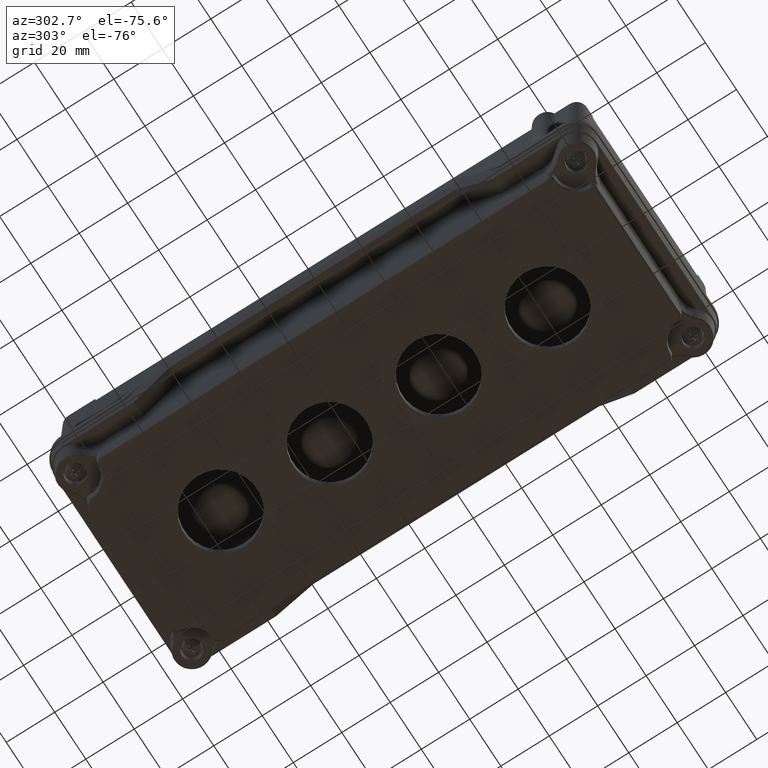
[diagram: clean part render]
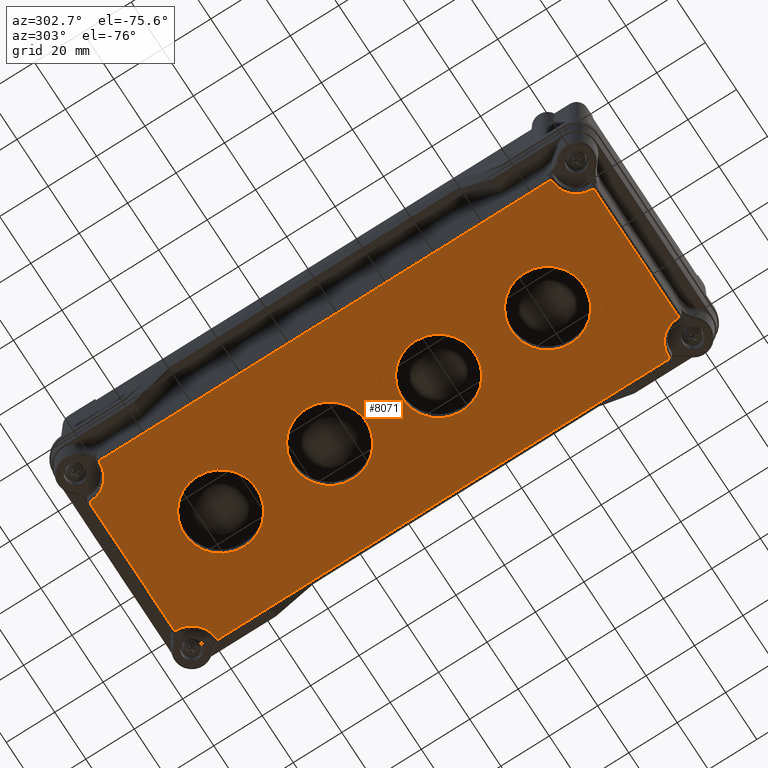
[diagram: same view with one face highlighted and labeled with its STEP entity id]
A machine part, auxiliary view. The second image highlights one B-rep face of the part: STEP entity #8071.
In plain terms, the highlighted planar face has unit normal (-0, 0, -1).
Its self-contained STEP definition (entity closure, byte-faithful):
#5871=CARTESIAN_POINT('',(-0.336741534578410,127.261391683954880,40.500000000000000));
#5872=VERTEX_POINT('',#5871);
#5888=CARTESIAN_POINT('',(-0.336741534578377,-54.857181445621052,40.500000000000000));
#5889=VERTEX_POINT('',#5888);
#5897=CARTESIAN_POINT('',(-0.336741534578377,-54.857181445621052,40.500000000000000));
#5898=DIRECTION('',(0.0,1.0,0.0));
#5899=VECTOR('',#5898,182.118573129575940);
#5900=LINE('',#5897,#5899);
#5901=EDGE_CURVE('',#5889,#5872,#5900,.T.);
#5911=CARTESIAN_POINT('',(-0.416955998710047,128.585317413578000,40.500000000000000));
#5912=VERTEX_POINT('',#5911);
#5922=CARTESIAN_POINT('',(-11.302430309385482,127.261391683954880,40.500000000000000));
#5923=DIRECTION('',(0.0,0.0,1.000000000000000));
#5924=DIRECTION('',(0.998177473758042,0.060346755356135,0.0));
#5925=AXIS2_PLACEMENT_3D('',#5922,#5923,#5924);
#5926=CIRCLE('',#5925,10.965688774807212);
#5927=EDGE_CURVE('',#5872,#5912,#5926,.T.);
#5939=CARTESIAN_POINT('',(-0.416955998710128,-56.181107175244172,40.500000000000000));
#5940=VERTEX_POINT('',#5939);
#5948=CARTESIAN_POINT('',(-11.302430309385379,-54.857181445621052,40.500000000000000));
#5949=DIRECTION('',(0.0,0.0,1.0));
#5950=DIRECTION('',(0.998177473758042,-0.060346755356137,0.0));
#5951=AXIS2_PLACEMENT_3D('',#5948,#5949,#5950);
#5952=CIRCLE('',#5951,10.965688774807031);
#5953=EDGE_CURVE('',#5940,#5889,#5952,.T.);
#6063=CARTESIAN_POINT('',(0.549705304405506,129.705654910625160,40.500000000000000));
#6064=VERTEX_POINT('',#6063);
#6090=CARTESIAN_POINT('',(-0.416955998710050,128.585317413578080,40.500000000000000));
#6091=CARTESIAN_POINT('',(-0.424100666013591,128.644061715203800,40.500000000000000));
#6092=CARTESIAN_POINT('',(-0.426713823472810,128.723821464357140,40.500000000000000));
#6093=CARTESIAN_POINT('',(-0.412642286476834,128.882846244157430,40.499999999999993));
#6094=CARTESIAN_POINT('',(-0.370964119019141,129.056486038928710,40.499999999999986));
#6095=CARTESIAN_POINT('',(-0.288090323461171,129.217822496155210,40.499999999999986));
#6096=CARTESIAN_POINT('',(-0.195771831061749,129.346013738602150,40.499999999999986));
#6097=CARTESIAN_POINT('',(-0.087816253757682,129.463746395688560,40.499999999999993));
#6098=CARTESIAN_POINT('',(0.091498978167510,129.591502626109270,40.499999999999986));
#6099=CARTESIAN_POINT('',(0.312786644344648,129.680376095271670,40.500000000000000));
#6100=CARTESIAN_POINT('',(0.470830399737456,129.703552725720130,40.500000000000000));
#6101=CARTESIAN_POINT('',(0.549705304405506,129.705654910625130,40.500000000000000));
#6102=B_SPLINE_CURVE_WITH_KNOTS('',3,(#6090,#6091,#6092,#6093,#6094,#6095,#6096,#6097,#6098,#6099,#6100,#6101),.UNSPECIFIED.,.F.,.U.,(4,1,1,1,1,1,1,1,1,4),(0.0,0.017753155550305,0.023670874067073,0.047341748134146,0.071012622201219,0.076930340717987,0.094683496268292,0.118354370335365,0.142025244402438,0.165696118469511),.UNSPECIFIED.);
#6103=EDGE_CURVE('',#5912,#6064,#6102,.T.);
#6232=CARTESIAN_POINT('',(0.549705304405435,-57.301444672291325,40.500000000000000));
#6233=VERTEX_POINT('',#6232);
#6241=CARTESIAN_POINT('',(0.549705304405435,-57.301444672291339,40.500000000000000));
#6242=CARTESIAN_POINT('',(0.470830399736940,-57.299342487386319,40.500000000000000));
#6243=CARTESIAN_POINT('',(0.312876737412772,-57.276249987053816,40.499999999999964));
#6244=CARTESIAN_POINT('',(0.091519842894758,-57.187290212524758,40.499999999999964));
#6245=CARTESIAN_POINT('',(-0.054844518446180,-57.083089145379290,40.499999999999950));
#6246=CARTESIAN_POINT('',(-0.140881661954736,-56.999887636847404,40.499999999999943));
#6247=CARTESIAN_POINT('',(-0.221326377444688,-56.912229873491178,40.499999999999943));
#6248=CARTESIAN_POINT('',(-0.288220557187905,-56.813312156864058,40.499999999999972));
#6249=CARTESIAN_POINT('',(-0.339821074052699,-56.705172118623878,40.499999999999950));
#6250=CARTESIAN_POINT('',(-0.384587155654208,-56.594711449037938,40.499999999999964));
#6251=CARTESIAN_POINT('',(-0.426733577401936,-56.420554670263925,40.499999999999972));
#6252=CARTESIAN_POINT('',(-0.426482221781576,-56.259432910745630,40.500000000000000));
#6253=CARTESIAN_POINT('',(-0.416955998710134,-56.181107175244250,40.500000000000000));
#6254=B_SPLINE_CURVE_WITH_KNOTS('',3,(#6241,#6242,#6243,#6244,#6245,#6246,#6247,#6248,#6249,#6250,#6251,#6252,#6253),.UNSPECIFIED.,.F.,.U.,(4,1,1,1,1,1,1,1,1,1,4),(0.0,0.023670874067206,0.047341748134412,0.071012622201618,0.076930340718420,0.082848059235221,0.106518933302427,0.112436651819229,0.118354370336031,0.142025244403237,0.165696118470443),.UNSPECIFIED.);
#6255=EDGE_CURVE('',#6233,#5940,#6254,.T.);
#6265=CARTESIAN_POINT('',(10.279728734740491,139.435678340959410,40.500000000000000));
#6266=VERTEX_POINT('',#6265);
#6284=CARTESIAN_POINT('',(0.283278526198761,139.702105119166900,40.500000000000000));
#6285=DIRECTION('',(0.0,0.0,1.0));
#6286=DIRECTION('',(0.707106781186545,-0.707106781186550,0.0));
#6287=AXIS2_PLACEMENT_3D('',#6284,#6285,#6286);
#6288=CIRCLE('',#6287,10.0);
#6289=EDGE_CURVE('',#6064,#6266,#6288,.T.);
#6301=CARTESIAN_POINT('',(10.279728734740479,-67.031468102625610,40.500000000000000));
#6302=VERTEX_POINT('',#6301);
#6310=CARTESIAN_POINT('',(0.283278526198749,-67.297894880833098,40.500000000000000));
#6311=DIRECTION('',(0.0,0.0,1.0));
#6312=DIRECTION('',(0.707106781186548,0.707106781186547,0.0));
#6313=AXIS2_PLACEMENT_3D('',#6310,#6311,#6312);
#6314=CIRCLE('',#6313,10.0);
#6315=EDGE_CURVE('',#6302,#6233,#6314,.T.);
#6409=CARTESIAN_POINT('',(11.400066231787598,140.402339644075790,40.500000000000000));
#6410=VERTEX_POINT('',#6409);
#6432=CARTESIAN_POINT('',(10.279728734740509,139.435678340960150,40.500000000000000));
#6433=CARTESIAN_POINT('',(10.281830909904601,139.514552880144860,40.500000000000000));
#6434=CARTESIAN_POINT('',(10.305144686854238,139.673781599064770,40.499999999999986));
#6435=CARTESIAN_POINT('',(10.394677603719593,139.895369724699150,40.500000000000007));
#6436=CARTESIAN_POINT('',(10.534658201642698,140.091096019923040,40.499999999999979));
#6437=CARTESIAN_POINT('',(10.716191023647806,140.247338210381660,40.499999999999993));
#6438=CARTESIAN_POINT('',(10.930373231145809,140.356949431031380,40.499999999999986));
#6439=CARTESIAN_POINT('',(11.162067625757643,140.412214203088520,40.499999999999993));
#6440=CARTESIAN_POINT('',(11.321740859225315,140.411865823005400,40.500000000000000));
#6441=CARTESIAN_POINT('',(11.400066231787591,140.402339644075770,40.500000000000000));
#6442=B_SPLINE_CURVE_WITH_KNOTS('',3,(#6432,#6433,#6434,#6435,#6436,#6437,#6438,#6439,#6440,#6441),.UNSPECIFIED.,.F.,.U.,(4,1,1,1,1,1,1,4),(0.0,0.023670764383131,0.047341528766262,0.071012293149393,0.094683057532524,0.118353821915655,0.142024586298786,0.165695350681917),.UNSPECIFIED.);
#6443=EDGE_CURVE('',#6266,#6410,#6442,.T.);
#6563=CARTESIAN_POINT('',(11.400066231787580,-67.998129405741878,40.500000000000000));
#6564=VERTEX_POINT('',#6563);
#6572=CARTESIAN_POINT('',(11.400066231787584,-67.998129405741878,40.500000000000000));
#6573=CARTESIAN_POINT('',(11.321740859224748,-68.007655584671582,40.500000000000000));
#6574=CARTESIAN_POINT('',(11.082498934690406,-68.008436048963645,40.500000000000036));
#6575=CARTESIAN_POINT('',(10.815638859349372,-67.910170913589809,40.500000000000050));
#6576=CARTESIAN_POINT('',(10.625191949040410,-67.764650366488425,40.500000000000078));
#6577=CARTESIAN_POINT('',(10.511844708894511,-67.654675235715416,40.500000000000064));
#6578=CARTESIAN_POINT('',(10.435415112740520,-67.548255114636760,40.500000000000085));
#6579=CARTESIAN_POINT('',(10.388992703377404,-67.460570353079461,40.500000000000078));
#6580=CARTESIAN_POINT('',(10.354051155022898,-67.389661117339386,40.500000000000078));
#6581=CARTESIAN_POINT('',(10.302276953244990,-67.249824706873042,40.500000000000085));
#6582=CARTESIAN_POINT('',(10.281830909904604,-67.110342641811513,40.500000000000000));
#6583=CARTESIAN_POINT('',(10.279728734740496,-67.031468102626263,40.500000000000000));
#6584=B_SPLINE_CURVE_WITH_KNOTS('',3,(#6572,#6573,#6574,#6575,#6576,#6577,#6578,#6579,#6580,#6581,#6582,#6583),.UNSPECIFIED.,.F.,.U.,(4,1,1,1,1,1,1,1,1,4),(0.0,0.023670764383300,0.071012293149899,0.082847675341549,0.094683057533199,0.118353821916499,0.121312667464411,0.124271513012324,0.142024586299799,0.165695350683099),.UNSPECIFIED.);
#6585=EDGE_CURVE('',#6564,#6302,#6584,.T.);
#6595=CARTESIAN_POINT('',(12.723991961410803,140.322125179943980,40.500000000000000));
#6596=VERTEX_POINT('',#6595);
#6606=CARTESIAN_POINT('',(12.723991961410803,151.287813954751130,40.500000000000000));
#6607=DIRECTION('',(0.0,0.0,1.0));
#6608=DIRECTION('',(-0.060346755356136,-0.998177473758042,0.0));
#6609=AXIS2_PLACEMENT_3D('',#6606,#6607,#6608);
#6610=CIRCLE('',#6609,10.965688774807163);
#6611=EDGE_CURVE('',#6410,#6596,#6610,.T.);
#6623=CARTESIAN_POINT('',(12.723991961410801,-67.917914941610093,40.500000000000000));
#6624=VERTEX_POINT('',#6623);
#6632=CARTESIAN_POINT('',(12.723991961410805,-78.883603716417213,40.500000000000000));
#6633=DIRECTION('',(0.0,0.0,1.0));
#6634=DIRECTION('',(-0.060346755356138,0.998177473758042,0.0));
#6635=AXIS2_PLACEMENT_3D('',#6632,#6633,#6634);
#6636=CIRCLE('',#6635,10.965688774807122);
#6637=EDGE_CURVE('',#6624,#6564,#6636,.T.);
#6655=CARTESIAN_POINT('',(62.842565090986653,140.322125179944070,40.500000000000000));
#6656=VERTEX_POINT('',#6655);
#6671=CARTESIAN_POINT('',(12.723991961410803,140.322125179943980,40.500000000000000));
#6672=DIRECTION('',(1.0,0.0,0.0));
#6673=VECTOR('',#6672,50.118573129575850);
#6674=LINE('',#6671,#6673);
#6675=EDGE_CURVE('',#6596,#6656,#6674,.T.);
#6687=CARTESIAN_POINT('',(62.842565090986710,-67.917914941610221,40.500000000000000));
#6688=VERTEX_POINT('',#6687);
#6696=CARTESIAN_POINT('',(62.842565090986710,-67.917914941610221,40.500000000000000));
#6697=DIRECTION('',(-1.0,0.0,0.0));
#6698=VECTOR('',#6697,50.118573129575907);
#6699=LINE('',#6696,#6698);
#6700=EDGE_CURVE('',#6688,#6624,#6699,.T.);
#6717=CARTESIAN_POINT('',(64.166490820609823,140.402339644075880,40.500000000000000));
#6718=VERTEX_POINT('',#6717);
#6728=CARTESIAN_POINT('',(62.842565090986653,151.287813954751240,40.500000000000000));
#6729=DIRECTION('',(0.0,0.0,1.0));
#6730=DIRECTION('',(0.060346755356139,-0.998177473758042,0.0));
#6731=AXIS2_PLACEMENT_3D('',#6728,#6729,#6730);
#6732=CIRCLE('',#6731,10.965688774807163);
#6733=EDGE_CURVE('',#6656,#6718,#6732,.T.);
#6745=CARTESIAN_POINT('',(64.166490820609880,-67.998129405742063,40.500000000000000));
#6746=VERTEX_POINT('',#6745);
#6754=CARTESIAN_POINT('',(62.842565090986710,-78.883603716417312,40.500000000000000));
#6755=DIRECTION('',(0.0,0.0,1.0));
#6756=DIRECTION('',(0.060346755356140,0.998177473758042,0.0));
#6757=AXIS2_PLACEMENT_3D('',#6754,#6755,#6756);
#6758=CIRCLE('',#6757,10.965688774807038);
#6759=EDGE_CURVE('',#6746,#6688,#6758,.T.);
#6853=CARTESIAN_POINT('',(65.286828317656983,139.435678340960290,40.500000000000000));
#6854=VERTEX_POINT('',#6853);
#6878=CARTESIAN_POINT('',(64.166490820609880,140.402339644075880,40.500000000000000));
#6879=CARTESIAN_POINT('',(64.244816556110820,140.411865867147270,40.500000000000000));
#6880=CARTESIAN_POINT('',(64.405747064703590,140.412201407858020,40.499999999999986));
#6881=CARTESIAN_POINT('',(64.638062420017562,140.356096510457800,40.500000000000007));
#6882=CARTESIAN_POINT('',(64.852154650970519,140.246243280165230,40.500000000000000));
#6883=CARTESIAN_POINT('',(65.033252270474193,140.089480104530570,40.500000000000007));
#6884=CARTESIAN_POINT('',(65.172995814325205,139.893637866767340,40.499999999999993));
#6885=CARTESIAN_POINT('',(65.261614047719078,139.672540306626390,40.500000000000000));
#6886=CARTESIAN_POINT('',(65.284726132751970,139.514553245628350,40.500000000000000));
#6887=CARTESIAN_POINT('',(65.286828317656983,139.435678340960290,40.500000000000000));
#6888=B_SPLINE_CURVE_WITH_KNOTS('',3,(#6878,#6879,#6880,#6881,#6882,#6883,#6884,#6885,#6886,#6887),.UNSPECIFIED.,.F.,.U.,(4,1,1,1,1,1,1,4),(0.0,0.023670874067074,0.047341748134147,0.071012622201221,0.094683496268294,0.118354370335368,0.142025244402442,0.165696118469515),.UNSPECIFIED.);
#6889=EDGE_CURVE('',#6718,#6854,#6888,.T.);
#7009=CARTESIAN_POINT('',(65.286828317657054,-67.031468102626462,40.500000000000000));
#7010=VERTEX_POINT('',#7009);
#7018=CARTESIAN_POINT('',(65.286828317657054,-67.031468102626491,40.500000000000000));
#7019=CARTESIAN_POINT('',(65.284726132752041,-67.110343007294972,40.500000000000000));
#7020=CARTESIAN_POINT('',(65.250341075508970,-67.347104648974948,40.499999999999922));
#7021=CARTESIAN_POINT('',(65.114112660824929,-67.596686286915997,40.499999999999872));
#7022=CARTESIAN_POINT('',(64.942312332366512,-67.763833070764719,40.499999999999844));
#7023=CARTESIAN_POINT('',(64.816957597347781,-67.859886106565753,40.499999999999829));
#7024=CARTESIAN_POINT('',(64.700512177144233,-67.919930909974155,40.499999999999808));
#7025=CARTESIAN_POINT('',(64.606970682333994,-67.953020112342017,40.499999999999808));
#7026=CARTESIAN_POINT('',(64.531705783168817,-67.977203377435856,40.499999999999808));
#7027=CARTESIAN_POINT('',(64.385802651295421,-68.007921251241626,40.499999999999844));
#7028=CARTESIAN_POINT('',(64.244816556111331,-68.007655628813524,40.500000000000000));
#7029=CARTESIAN_POINT('',(64.166490820609951,-67.998129405742077,40.500000000000000));
#7030=B_SPLINE_CURVE_WITH_KNOTS('',3,(#7018,#7019,#7020,#7021,#7022,#7023,#7024,#7025,#7026,#7027,#7028,#7029),.UNSPECIFIED.,.F.,.U.,(4,1,1,1,1,1,1,1,1,4),(0.0,0.023670874067206,0.071012622201619,0.082848059235223,0.094683496268826,0.118354370336032,0.121313229594433,0.124272088852834,0.142025244403239,0.165696118470445),.UNSPECIFIED.);
#7031=EDGE_CURVE('',#7010,#6746,#7030,.T.);
#7041=CARTESIAN_POINT('',(75.016851747991282,129.705654910625190,40.500000000000000));
#7042=VERTEX_POINT('',#7041);
#7060=CARTESIAN_POINT('',(75.283278526198728,139.702105119166930,40.500000000000000));
#7061=DIRECTION('',(0.0,0.0,1.0));
#7062=DIRECTION('',(-0.707106781186552,-0.707106781186543,0.0));
#7063=AXIS2_PLACEMENT_3D('',#7060,#7061,#7062);
#7064=CIRCLE('',#7063,10.0);
#7065=EDGE_CURVE('',#6854,#7042,#7064,.T.);
#7077=CARTESIAN_POINT('',(75.016851747991566,-57.301444672291339,40.500000000000000));
#7078=VERTEX_POINT('',#7077);
#7086=CARTESIAN_POINT('',(75.283278526198799,-67.297894880833070,40.500000000000000));
#7087=DIRECTION('',(0.0,0.0,1.0));
#7088=DIRECTION('',(-0.707106781186543,0.707106781186552,0.0));
#7089=AXIS2_PLACEMENT_3D('',#7086,#7087,#7088);
#7090=CIRCLE('',#7089,9.999999999999998);
#7091=EDGE_CURVE('',#7078,#7010,#7090,.T.);
#7201=CARTESIAN_POINT('',(75.983513051107664,128.585317413578080,40.500000000000000));
#7202=VERTEX_POINT('',#7201);
#7226=CARTESIAN_POINT('',(75.016851747992035,129.705654910625190,40.500000000000000));
#7227=CARTESIAN_POINT('',(75.076007652380554,129.704078279252120,40.500000000000000));
#7228=CARTESIAN_POINT('',(75.155281393558312,129.694941143648720,40.499999999999979));
#7229=CARTESIAN_POINT('',(75.310521416619807,129.657682326354060,40.499999999999979));
#7230=CARTESIAN_POINT('',(75.476175377100915,129.591015274016770,40.499999999999972));
#7231=CARTESIAN_POINT('',(75.623653043629446,129.485447926388500,40.499999999999986));
#7232=CARTESIAN_POINT('',(75.736986519614959,129.375372231852450,40.500000000000000));
#7233=CARTESIAN_POINT('',(75.837664758110776,129.251389314630020,40.500000000000000));
#7234=CARTESIAN_POINT('',(75.937843754867060,129.055296725914760,40.500000000000007));
#7235=CARTESIAN_POINT('',(75.993328846579075,128.823384115109750,40.500000000000007));
#7236=CARTESIAN_POINT('',(75.993039230037326,128.663642786140340,40.500000000000000));
#7237=CARTESIAN_POINT('',(75.983513051107678,128.585317413578080,40.500000000000000));
#7238=B_SPLINE_CURVE_WITH_KNOTS('',3,(#7226,#7227,#7228,#7229,#7230,#7231,#7232,#7233,#7234,#7235,#7236,#7237),.UNSPECIFIED.,.F.,.U.,(4,1,1,1,1,1,1,1,1,4),(0.0,0.017753073287348,0.023670764383131,0.047341528766262,0.071012293149394,0.076929984245176,0.094683057532525,0.118353821915656,0.142024586298787,0.165695350681918),.UNSPECIFIED.);
#7239=EDGE_CURVE('',#7042,#7202,#7238,.T.);
#7368=CARTESIAN_POINT('',(75.983513051107835,-56.181107175244236,40.500000000000000));
#7369=VERTEX_POINT('',#7368);
#7377=CARTESIAN_POINT('',(75.983513051107821,-56.181107175244222,40.500000000000000));
#7378=CARTESIAN_POINT('',(75.993039230037525,-56.259432547807059,40.500000000000000));
#7379=CARTESIAN_POINT('',(75.993404576145679,-56.419065417874414,40.499999999999993));
#7380=CARTESIAN_POINT('',(75.937841128325573,-56.651063882392371,40.499999999999979));
#7381=CARTESIAN_POINT('',(75.856155102495620,-56.811108238369030,40.499999999999972));
#7382=CARTESIAN_POINT('',(75.786422695778938,-56.908378933576287,40.499999999999972));
#7383=CARTESIAN_POINT('',(75.711470640226096,-57.000761774413228,40.499999999999964));
#7384=CARTESIAN_POINT('',(75.623380451503024,-57.081405619762833,40.500000000000000));
#7385=CARTESIAN_POINT('',(75.523951842767033,-57.148266330766788,40.499999999999986));
#7386=CARTESIAN_POINT('',(75.421235746799525,-57.208711974927645,40.499999999999993));
#7387=CARTESIAN_POINT('',(75.255130126333754,-57.275919948726035,40.499999999999986));
#7388=CARTESIAN_POINT('',(75.095726287177470,-57.299342497127206,40.500000000000000));
#7389=CARTESIAN_POINT('',(75.016851747992206,-57.301444672291311,40.500000000000000));
#7390=B_SPLINE_CURVE_WITH_KNOTS('',3,(#7377,#7378,#7379,#7380,#7381,#7382,#7383,#7384,#7385,#7386,#7387,#7388,#7389),.UNSPECIFIED.,.F.,.U.,(4,1,1,1,1,1,1,1,1,1,4),(0.0,0.023670764383300,0.047341528766600,0.071012293149900,0.076929984245725,0.082847675341550,0.106518439724851,0.112436130820676,0.118353821916501,0.142024586299801,0.165695350683101),.UNSPECIFIED.);
#7391=EDGE_CURVE('',#7369,#7078,#7390,.T.);
#7401=CARTESIAN_POINT('',(75.903298586975851,127.261391683954860,40.500000000000000));
#7402=VERTEX_POINT('',#7401);
#7412=CARTESIAN_POINT('',(86.868987361782985,127.261391683954880,40.500000000000000));
#7413=DIRECTION('',(0.0,0.0,1.000000000000000));
#7414=DIRECTION('',(-0.998177473758042,0.060346755356136,0.0));
#7415=AXIS2_PLACEMENT_3D('',#7412,#7413,#7414);
#7416=CIRCLE('',#7415,10.965688774807118);
#7417=EDGE_CURVE('',#7202,#7402,#7416,.T.);
#7429=CARTESIAN_POINT('',(75.903298586976035,-54.857181445620952,40.500000000000000));
#7430=VERTEX_POINT('',#7429);
#7438=CARTESIAN_POINT('',(86.868987361783041,-54.857181445620959,40.500000000000000));
#7439=DIRECTION('',(0.0,0.0,1.000000000000000));
#7440=DIRECTION('',(-0.998177473758042,-0.060346755356141,0.0));
#7441=AXIS2_PLACEMENT_3D('',#7438,#7439,#7440);
#7442=CIRCLE('',#7441,10.965688774807003);
#7443=EDGE_CURVE('',#7430,#7369,#7442,.T.);
#7462=CARTESIAN_POINT('',(75.903298586975851,127.261391683954860,40.500000000000000));
#7463=DIRECTION('',(0.0,-1.0,0.0));
#7464=VECTOR('',#7463,182.118573129575790);
#7465=LINE('',#7462,#7464);
#7466=EDGE_CURVE('',#7402,#7430,#7465,.T.);
#7996=CARTESIAN_POINT('',(37.783278526198750,36.202105119166916,40.500000000000000));
#7997=DIRECTION('',(0.0,0.0,1.0));
#7998=DIRECTION('',(1.0,0.0,0.0));
#7999=AXIS2_PLACEMENT_3D('',#7996,#7997,#7998);
#8000=PLANE('',#7999);
#8001=ORIENTED_EDGE('',*,*,#5901,.F.);
#8002=ORIENTED_EDGE('',*,*,#5953,.F.);
#8003=ORIENTED_EDGE('',*,*,#6255,.F.);
#8004=ORIENTED_EDGE('',*,*,#6315,.F.);
#8005=ORIENTED_EDGE('',*,*,#6585,.F.);
#8006=ORIENTED_EDGE('',*,*,#6637,.F.);
#8007=ORIENTED_EDGE('',*,*,#6700,.F.);
#8008=ORIENTED_EDGE('',*,*,#6759,.F.);
#8009=ORIENTED_EDGE('',*,*,#7031,.F.);
#8010=ORIENTED_EDGE('',*,*,#7091,.F.);
#8011=ORIENTED_EDGE('',*,*,#7391,.F.);
#8012=ORIENTED_EDGE('',*,*,#7443,.F.);
#8013=ORIENTED_EDGE('',*,*,#7466,.F.);
#8014=ORIENTED_EDGE('',*,*,#7417,.F.);
#8015=ORIENTED_EDGE('',*,*,#7239,.F.);
#8016=ORIENTED_EDGE('',*,*,#7065,.F.);
#8017=ORIENTED_EDGE('',*,*,#6889,.F.);
#8018=ORIENTED_EDGE('',*,*,#6733,.F.);
#8019=ORIENTED_EDGE('',*,*,#6675,.F.);
#8020=ORIENTED_EDGE('',*,*,#6611,.F.);
#8021=ORIENTED_EDGE('',*,*,#6443,.F.);
#8022=ORIENTED_EDGE('',*,*,#6289,.F.);
#8023=ORIENTED_EDGE('',*,*,#6103,.F.);
#8024=ORIENTED_EDGE('',*,*,#5927,.F.);
#8025=EDGE_LOOP('',(#8001,#8002,#8003,#8004,#8005,#8006,#8007,#8008,#8009,#8010,#8011,#8012,#8013,#8014,#8015,#8016,#8017,#8018,#8019,#8020,#8021,#8022,#8023,#8024));
#8026=FACE_OUTER_BOUND('',#8025,.T.);
#8027=CARTESIAN_POINT('',(52.783278526198750,103.702105119166930,40.500000000000000));
#8028=VERTEX_POINT('',#8027);
#8029=CARTESIAN_POINT('',(37.783278526198750,103.702105119166930,40.500000000000000));
#8030=DIRECTION('',(0.0,0.0,-1.0));
#8031=DIRECTION('',(-1.0,0.0,0.0));
#8032=AXIS2_PLACEMENT_3D('',#8029,#8030,#8031);
#8033=CIRCLE('',#8032,15.0);
#8034=EDGE_CURVE('',#8028,#8028,#8033,.T.);
#8035=ORIENTED_EDGE('',*,*,#8034,.T.);
#8036=EDGE_LOOP('',(#8035));
#8037=FACE_BOUND('',#8036,.T.);
#8038=CARTESIAN_POINT('',(52.783278526198757,58.702105119166923,40.500000000000000));
#8039=VERTEX_POINT('',#8038);
#8040=CARTESIAN_POINT('',(37.783278526198757,58.702105119166923,40.500000000000000));
#8041=DIRECTION('',(0.0,0.0,-1.0));
#8042=DIRECTION('',(-1.0,0.0,0.0));
#8043=AXIS2_PLACEMENT_3D('',#8040,#8041,#8042);
#8044=CIRCLE('',#8043,15.0);
#8045=EDGE_CURVE('',#8039,#8039,#8044,.T.);
#8046=ORIENTED_EDGE('',*,*,#8045,.T.);
#8047=EDGE_LOOP('',(#8046));
#8048=FACE_BOUND('',#8047,.T.);
#8049=CARTESIAN_POINT('',(52.783278526198771,13.702105119166925,40.500000000000000));
#8050=VERTEX_POINT('',#8049);
#8051=CARTESIAN_POINT('',(37.783278526198771,13.702105119166923,40.500000000000000));
#8052=DIRECTION('',(0.0,0.0,-1.0));
#8053=DIRECTION('',(-1.0,0.0,0.0));
#8054=AXIS2_PLACEMENT_3D('',#8051,#8052,#8053);
#8055=CIRCLE('',#8054,15.0);
#8056=EDGE_CURVE('',#8050,#8050,#8055,.T.);
#8057=ORIENTED_EDGE('',*,*,#8056,.T.);
#8058=EDGE_LOOP('',(#8057));
#8059=FACE_BOUND('',#8058,.T.);
#8060=CARTESIAN_POINT('',(52.783278526198778,-31.297894880833077,40.500000000000000));
#8061=VERTEX_POINT('',#8060);
#8062=CARTESIAN_POINT('',(37.783278526198778,-31.297894880833077,40.500000000000000));
#8063=DIRECTION('',(0.0,0.0,-1.0));
#8064=DIRECTION('',(-1.0,0.0,0.0));
#8065=AXIS2_PLACEMENT_3D('',#8062,#8063,#8064);
#8066=CIRCLE('',#8065,15.0);
#8067=EDGE_CURVE('',#8061,#8061,#8066,.T.);
#8068=ORIENTED_EDGE('',*,*,#8067,.T.);
#8069=EDGE_LOOP('',(#8068));
#8070=FACE_BOUND('',#8069,.T.);
#8071=ADVANCED_FACE('',(#8026,#8037,#8048,#8059,#8070),#8000,.T.);